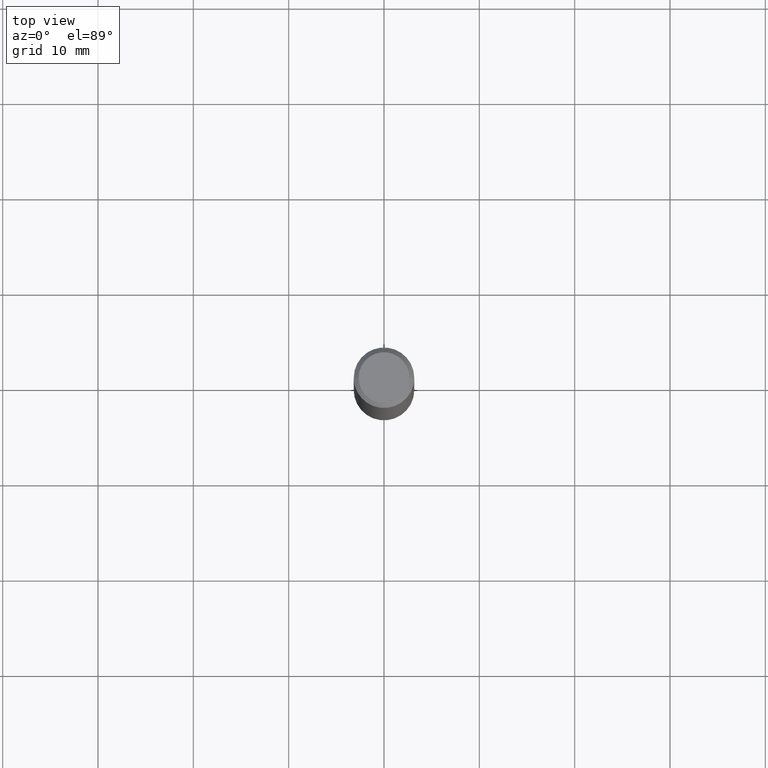
[diagram: clean part render]
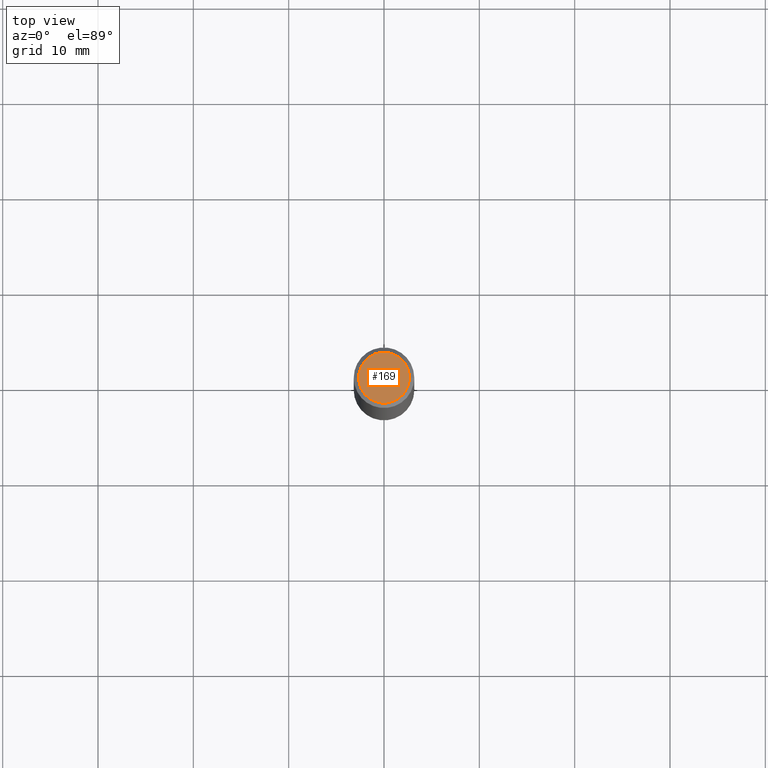
[diagram: same view with one face highlighted and labeled with its STEP entity id]
A machine part, top view. The second image highlights one B-rep face of the part: STEP entity #169.
In plain terms, the highlighted planar face has unit normal (0, -0, -1).
Its self-contained STEP definition (entity closure, byte-faithful):
#6 = CARTESIAN_POINT ( 'NONE',  ( -0.1049999999999993577, 7.681258945454844472E-16, -4.268512490100935748E-17 ) ) ;
#18 = FACE_OUTER_BOUND ( 'NONE', #187, .T. ) ;
#20 = CIRCLE ( 'NONE', #108, 0.1049999999999993577 ) ;
#40 = CARTESIAN_POINT ( 'NONE',  ( 0.1049999999999993577, -8.238720831321533257E-16, -4.268512490099867088E-17 ) ) ;
#108 = AXIS2_PLACEMENT_3D ( 'NONE', #373, #333, #258 ) ;
#133 = VERTEX_POINT ( 'NONE', #6 ) ;
#134 = DIRECTION ( 'NONE',  ( 1.000000000000000000, -6.982962677686267499E-15, 4.874400871621268483E-29 ) ) ;
#169 = ADVANCED_FACE ( 'NONE', ( #18 ), #287, .F. ) ;
#172 = ORIENTED_EDGE ( 'NONE', *, *, #340, .T. ) ;
#182 = AXIS2_PLACEMENT_3D ( 'NONE', #492, #412, #134 ) ;
#187 = EDGE_LOOP ( 'NONE', ( #172, #206 ) ) ;
#206 = ORIENTED_EDGE ( 'NONE', *, *, #310, .T. ) ;
#209 = DIRECTION ( 'NONE',  ( -1.000000000000000000, 6.982962677686265922E-15, -4.876176775795935793E-29 ) ) ;
#258 = DIRECTION ( 'NONE',  ( 1.000000000000000000, -6.982962677686267499E-15, 4.874400871621268483E-29 ) ) ;
#287 = PLANE ( 'NONE',  #455 ) ;
#310 = EDGE_CURVE ( 'NONE', #483, #133, #20, .T. ) ;
#333 = DIRECTION ( 'NONE',  ( -2.445468806185136597E-29, 3.491481338843145583E-15, 1.000000000000000000 ) ) ;
#340 = EDGE_CURVE ( 'NONE', #133, #483, #402, .T. ) ;
#373 = CARTESIAN_POINT ( 'NONE',  ( 1.043851414335219781E-45, -1.490343170380447145E-31, -4.268512490100411279E-17 ) ) ;
#397 = CARTESIAN_POINT ( 'NONE',  ( 7.332110811570533898E-16, 0.1049999999999993577, -3.879481030290301102E-16 ) ) ;
#402 = CIRCLE ( 'NONE', #182, 0.1049999999999993577 ) ;
#412 = DIRECTION ( 'NONE',  ( -2.445468806185136597E-29, 3.491481338843145583E-15, 1.000000000000000000 ) ) ;
#437 = DIRECTION ( 'NONE',  ( 2.438088387897960049E-29, -3.491481338843145188E-15, -1.000000000000000000 ) ) ;
#455 = AXIS2_PLACEMENT_3D ( 'NONE', #397, #437, #209 ) ;
#483 = VERTEX_POINT ( 'NONE', #40 ) ;
#492 = CARTESIAN_POINT ( 'NONE',  ( 1.043851414335219781E-45, -1.490343170380447145E-31, -4.268512490100411279E-17 ) ) ;